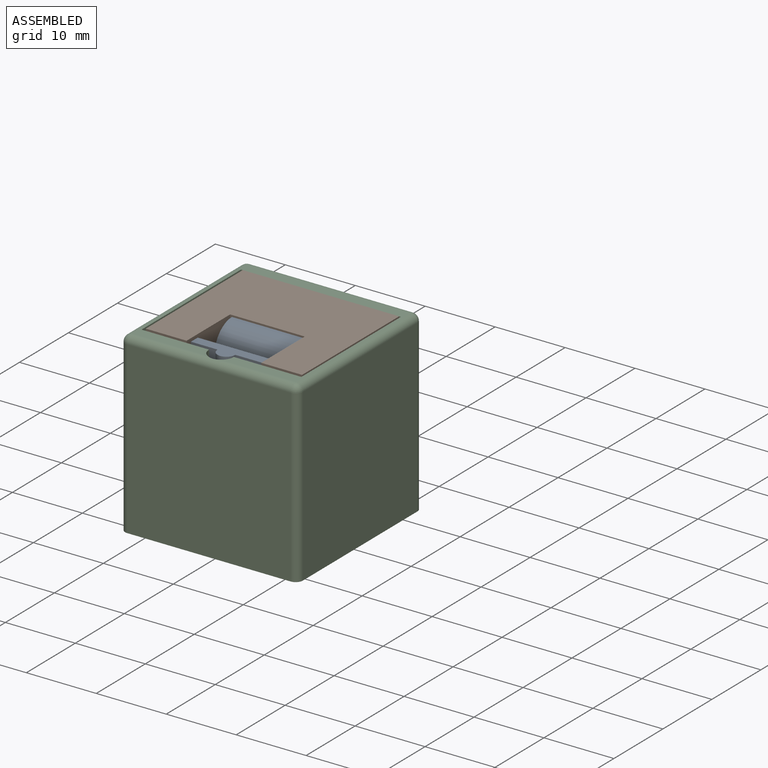
[diagram: assembled view]
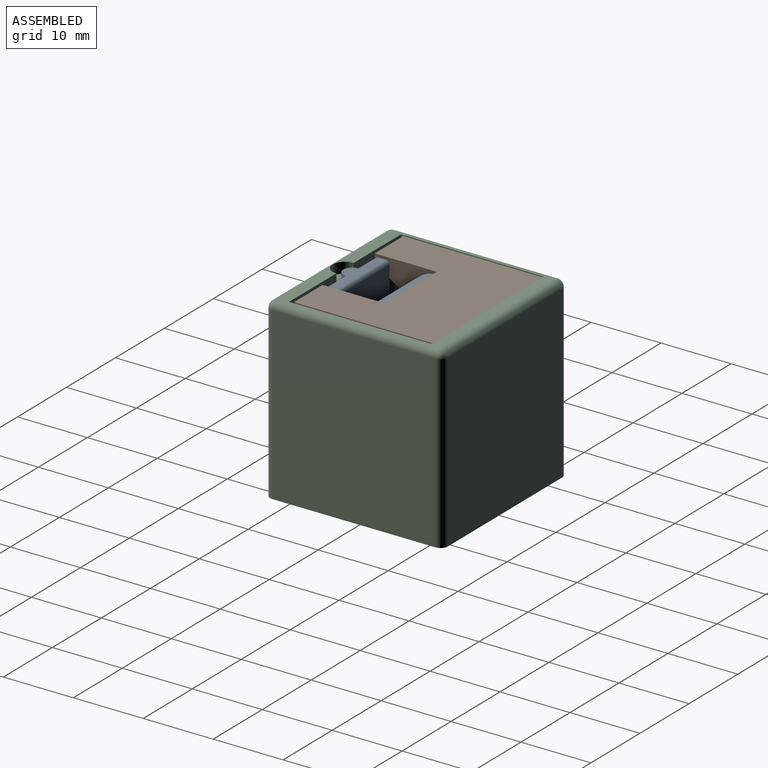
[diagram: assembled view, second angle]
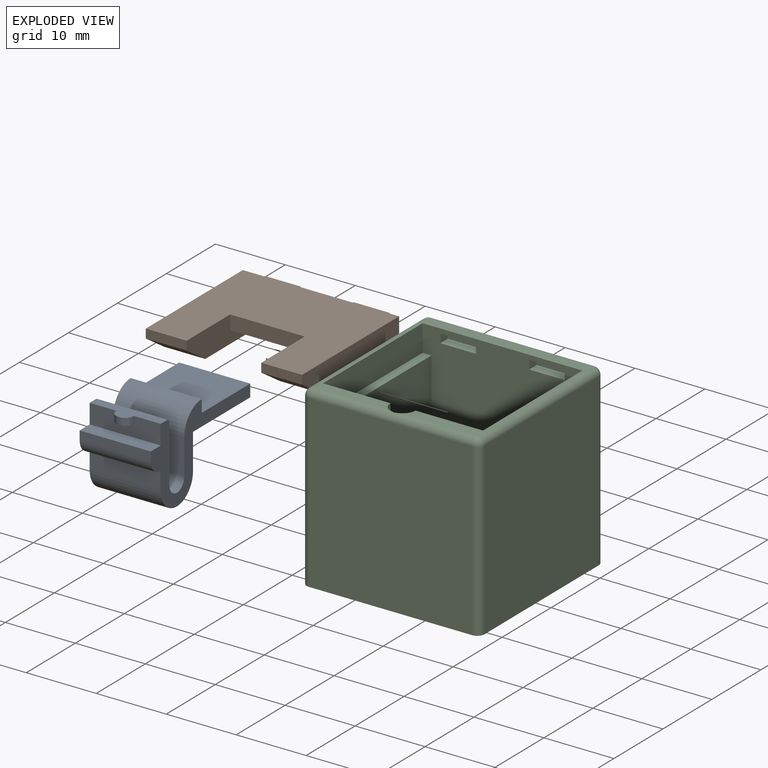
[diagram: exploded view]
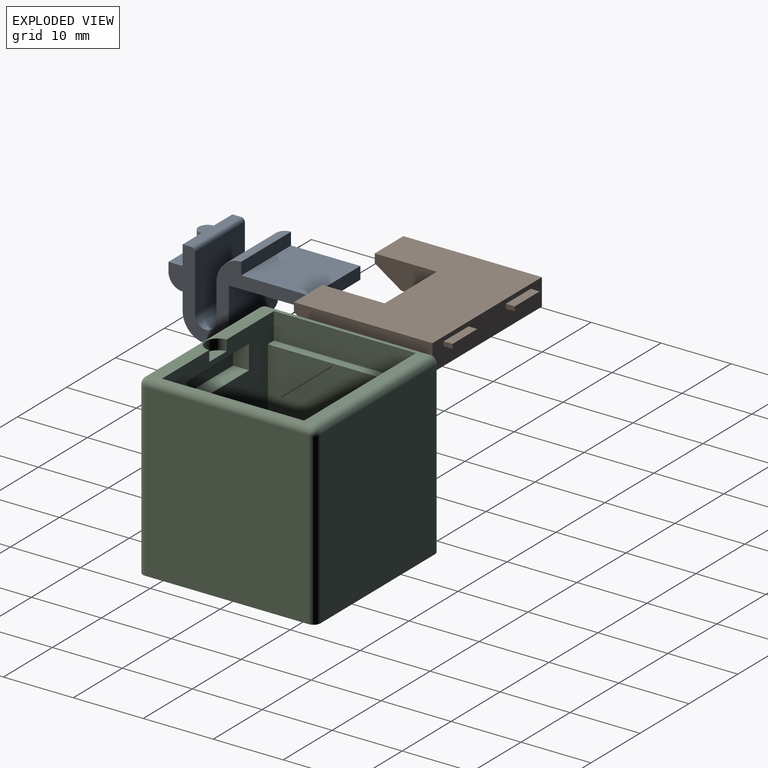
[diagram: exploded view, second angle]
ASSEMBLY  parts=3 mates=2
PART A: 21 faces, bbox 20.3x11.9x10.2 mm
  f0: plane 10.16x9.91mm, normal (0,1,0), area 100.6mm2, adj f1,f15,f16,f17
  f1: plane 10.16x1.78mm, normal (1,0,0), area 18.1mm2, adj f0,f2,f16,f17
  f2: cylinder r=3.56mm len=10.16mm, axis (0,0,-1), area 56.8mm2, adj f1,f3,f16,f17
  f3: plane 10.16x5.08mm, normal (-1,0,0), area 51.6mm2, adj f2,f4,f16,f17
  f4: cylinder r=1.52mm len=10.16mm, axis (0,0,-1), area 48.6mm2, adj f3,f5,f16,f17
  f5: plane 10.16x8.13mm, normal (1,0,0), area 82.6mm2, adj f4,f16,f17,f20
  f6: plane 10.16x2.54mm, normal (0,1,0), area 15.4mm2, adj f7,f16,f17,f18,f20
  f7: plane 10.16x2.79mm, normal (-1,0,0), area 25.8mm2, adj f6,f8,f16,f17,f18,f19
  f8: plane 10.16x2.03mm, normal (0,1,0), area 20.6mm2, adj f7,f9,f16,f17
  f9: plane 10.16x1.27mm, normal (-1,0,0), area 12.9mm2, adj f8,f10,f16,f17
  f10: cylinder r=2.03mm len=10.16mm, axis (0,0,-1), area 32.4mm2, adj f9,f11,f16,f17
  f11: plane 10.16x2.54mm, normal (-1,0,0), area 25.8mm2, adj f10,f12,f16,f17
  f12: cylinder r=3.3mm len=10.16mm, axis (0,0,-1), area 105.4mm2, adj f11,f13,f16,f17
  f13: plane 10.16x5.08mm, normal (1,0,0), area 51.6mm2, adj f12,f14,f16,f17
  f14: plane 11.68x10.16mm, normal (0,-1,0), area 118.7mm2, adj f13,f15,f16,f17
  f15: plane 10.16x1.78mm, normal (1,0,0), area 18.1mm2, adj f0,f14,f16,f17
  f16: plane 20.32x11.94mm, normal (0,0,1), area 71.2mm2, adj f0,f1,f2,f3,f4,f5,f6,f7
  f17: plane 20.32x11.94mm, normal (0,0,-1), area 71.2mm2, adj f0,f1,f2,f3,f4,f5,f6,f7
  f18: cylinder r=1.27mm len=2.54mm, axis (0,1,0), area 4.1mm2, adj f6,f7,f19
  f19: plane 2.54x1.27mm, normal (0,-1,0), area 2.5mm2, adj f7,f18
  f20: cylinder r=0.51mm len=10.16mm, axis (0,0,1), area 8.1mm2, adj f5,f6,f16,f17
PART B: 24 faces, bbox 22.4x21.1x3.8 mm
  f0: plane 5.84x1.27mm, normal (0,-1,0), area 7.4mm2, adj f14,f15,f17,f22
  f1: plane 10.67x10.16mm, normal (0,0,-1), area 108.4mm2, adj f17,f18,f20,f23
  f2: plane 1.27x0.64mm, normal (-1,0,0), area 0.8mm2, adj f3,f5,f6,f12
  f3: plane 5.08x1.27mm, normal (0,0,-1), area 6.5mm2, adj f2,f4,f6,f12
  f4: plane 1.27x0.64mm, normal (1,0,0), area 0.8mm2, adj f3,f5,f6,f12
  f5: plane 5.08x1.27mm, normal (0,0,1), area 6.5mm2, adj f2,f4,f6,f12
  f6: plane 5.08x0.64mm, normal (0,1,0), area 3.2mm2, adj f2,f3,f4,f5
  f7: plane 1.27x0.64mm, normal (-1,0,0), area 0.8mm2, adj f8,f10,f11,f12
  f8: plane 5.08x1.27mm, normal (0,0,-1), area 6.5mm2, adj f7,f9,f11,f12
  f9: plane 1.27x0.64mm, normal (1,0,0), area 0.8mm2, adj f8,f10,f11,f12
  f10: plane 5.08x1.27mm, normal (0,0,1), area 6.5mm2, adj f7,f9,f11,f12
  f11: plane 5.08x0.64mm, normal (0,1,0), area 3.2mm2, adj f7,f8,f9,f10
  f12: plane 22.35x3.81mm, normal (0,1,0), area 78.7mm2, adj f2,f3,f4,f5,f7,f8,f9,f10
  f13: plane 19.81x3.81mm, normal (1,0,0), area 70.6mm2, adj f12,f14,f16,f19,f21
  f14: plane 22.35x19.81mm, normal (0,0,1), area 348mm2, adj f0,f12,f13,f15,f17,f18,f19,f20
  f15: plane 19.81x3.81mm, normal (-1,0,0), area 70.6mm2, adj f0,f12,f14,f16,f22
  f16: plane 22.35x16mm, normal (0,0,-1), area 195.1mm2, adj f12,f13,f15,f17,f18,f21,f22,f23
  f17: plane 19.05x3.81mm, normal (1,0,0), area 47.1mm2, adj f0,f1,f14,f16,f20,f22,f23
  f18: plane 19.05x3.81mm, normal (-1,0,0), area 47.1mm2, adj f1,f14,f16,f19,f20,f21,f23
  f19: plane 5.84x1.27mm, normal (0,-1,0), area 7.4mm2, adj f13,f14,f18,f21
  f20: plane 10.67x2.03mm, normal (0,-1,0), area 21.7mm2, adj f1,f14,f17,f18
  f21: plane 5.84x3.81mm, normal (0,-0.55,-0.83), area 26.8mm2, adj f13,f16,f18,f19
  f22: plane 5.84x3.81mm, normal (0,-0.55,-0.83), area 26.8mm2, adj f0,f15,f16,f17
  f23: plane 10.67x1.78mm, normal (0,-1,0), area 19mm2, adj f1,f16,f17,f18
PART C: 44 faces, bbox 25.4x25.4x25.4 mm
  f0: plane 22.86x22.86mm, normal (0,1,0), area 425.2mm2, adj f2,f6,f7,f9,f11,f12,f13,f14
  f1: plane 22.86x22.86mm, normal (0,-1,0), area 461.3mm2, adj f2,f6,f7,f9,f11,f12,f13,f14
  f2: plane 20.32x20.32mm, normal (0,0,1), area 412.9mm2, adj f0,f1,f11,f13
  f3: plane 24.38x23.37mm, normal (-1,0,0), area 569.8mm2, adj f10,f34,f40,f43
  f4: plane 24.38x23.37mm, normal (0,-1,0), area 569.8mm2, adj f10,f37,f41,f43
  f5: plane 24.38x23.37mm, normal (1,0,0), area 569.8mm2, adj f10,f32,f36,f37
  f6: plane 20.32x3.81mm, normal (1,0,0), area 77.4mm2, adj f0,f1,f9,f14
  f7: plane 20.32x3.81mm, normal (-1,0,0), area 77.4mm2, adj f0,f1,f9,f12
  f8: plane 24.38x23.37mm, normal (0,1,0), area 569.8mm2, adj f10,f32,f34,f35
  f9: plane 23.37x23.37mm, normal (0,0,1), area 76.9mm2, adj f0,f1,f6,f7,f30,f35,f36,f40
  f10: plane 25.4x25.4mm, normal (0,0,-1), area 644.3mm2, adj f3,f4,f5,f8,f32,f34,f37,f43
  f11: plane 20.32x19.05mm, normal (-1,0,0), area 387.1mm2, adj f0,f1,f2,f12
  f12: plane 20.32x1.27mm, normal (0,0,1), area 25.8mm2, adj f0,f1,f7,f11
  f13: plane 20.32x19.05mm, normal (1,0,0), area 387.1mm2, adj f0,f1,f2,f14
  f14: plane 20.32x1.27mm, normal (0,0,1), area 25.8mm2, adj f0,f1,f6,f13
  f15: plane 5.08x1.52mm, normal (0,0,-1), area 7.7mm2, adj f1,f16,f18,f19
  f16: plane 1.52x1.27mm, normal (1,0,0), area 1.9mm2, adj f1,f15,f17,f19
  f17: plane 5.08x1.52mm, normal (0,0,1), area 7.7mm2, adj f1,f16,f18,f19
  f18: plane 1.52x1.27mm, normal (-1,0,0), area 1.9mm2, adj f1,f15,f17,f19
  f19: plane 5.08x1.27mm, normal (0,-1,0), area 6.5mm2, adj f15,f16,f17,f18
  f20: plane 1.52x1.27mm, normal (1,0,0), area 1.9mm2, adj f1,f21,f23,f24
  f21: plane 5.08x1.52mm, normal (0,0,1), area 7.7mm2, adj f1,f20,f22,f24
  f22: plane 1.52x1.27mm, normal (-1,0,0), area 1.9mm2, adj f1,f21,f23,f24
  f23: plane 5.08x1.52mm, normal (0,0,-1), area 7.7mm2, adj f1,f20,f22,f24
  f24: plane 5.08x1.27mm, normal (0,-1,0), area 6.5mm2, adj f20,f21,f22,f23
  f25: plane 3.43x2.29mm, normal (-1,0,0), area 7.8mm2, adj f0,f26,f28,f29
  f26: plane 12.7x2.29mm, normal (0,0,1), area 29mm2, adj f0,f25,f27,f29
  f27: plane 3.43x2.29mm, normal (1,0,0), area 7.8mm2, adj f0,f26,f28,f29
  f28: plane 12.7x2.29mm, normal (0,0,-1), area 29mm2, adj f0,f25,f27,f29
  f29: plane 12.7x3.43mm, normal (0,1,0), area 43.5mm2, adj f25,f26,f27,f28
  f30: cylinder r=1.78mm len=3.56mm, axis (0,0,1), area 8.5mm2, adj f0,f9,f31,f41
  f31: plane 3.56x1.78mm, normal (0,0,1), area 5mm2, adj f0,f30
  f32: cylinder r=1.02mm len=24.38mm, axis (0,0,-1), area 38.9mm2, adj f5,f8,f10,f33
  f33: sphere r=1.02mm, area 1.6mm2, adj f32,f35,f36
  f34: cylinder r=1.02mm len=24.38mm, axis (0,0,1), area 38.9mm2, adj f3,f8,f10,f38
  f35: cylinder r=1.02mm len=23.37mm, axis (1,0,0), area 37.3mm2, adj f8,f9,f33,f38
  f36: cylinder r=1.02mm len=23.37mm, axis (0,-1,0), area 37.3mm2, adj f5,f9,f33,f39
  f37: cylinder r=1.02mm len=24.38mm, axis (0,0,1), area 38.9mm2, adj f4,f5,f10,f39
  f38: sphere r=1.02mm, area 1.6mm2, adj f34,f35,f40
  f39: sphere r=1.02mm, area 1.6mm2, adj f36,f37,f41
  f40: cylinder r=1.02mm len=23.37mm, axis (0,1,0), area 37.3mm2, adj f3,f9,f38,f42
  f41: cylinder r=1.02mm len=23.37mm, axis (-1,0,0), area 37mm2, adj f4,f9,f30,f39,f42
  f42: sphere r=1.02mm, area 1.6mm2, adj f40,f41,f43
  f43: cylinder r=1.02mm len=24.38mm, axis (0,0,-1), area 38.9mm2, adj f3,f4,f10,f42
PLACE A rot(axis=(0.58,0.58,0.58),120deg) t=(-5.08,-5.84,16.51)mm
PLACE B at identity
PLACE C at identity
MATE revolute C.f16 <-> B.f2  axis (1,0,0) through (-8.89,10.16,24.76)mm
MATE fastened B.f20 <-> A.f1  axis (0,-1,0) through (0,-0.76,23.37)mm
